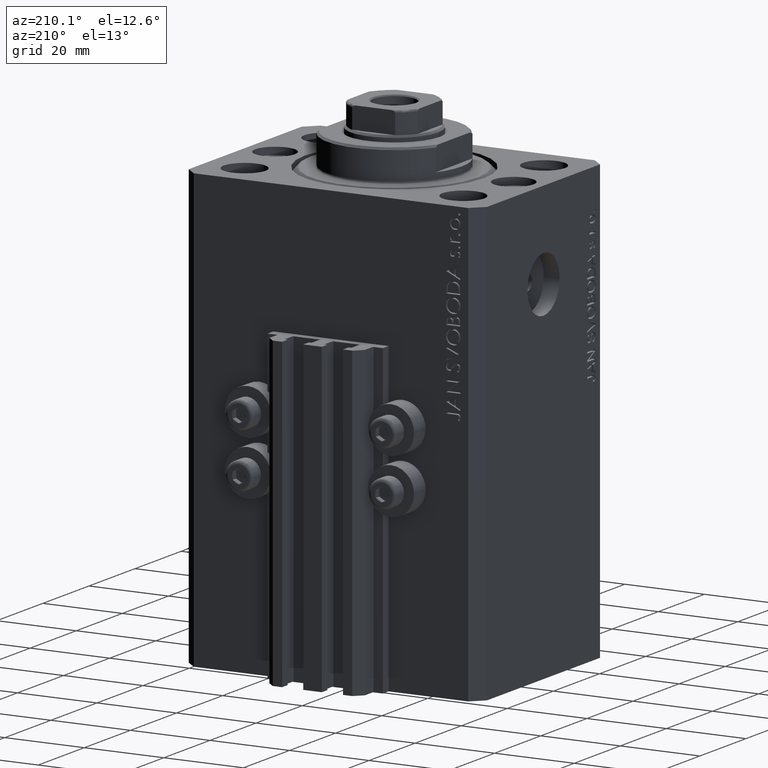
[diagram: clean part render]
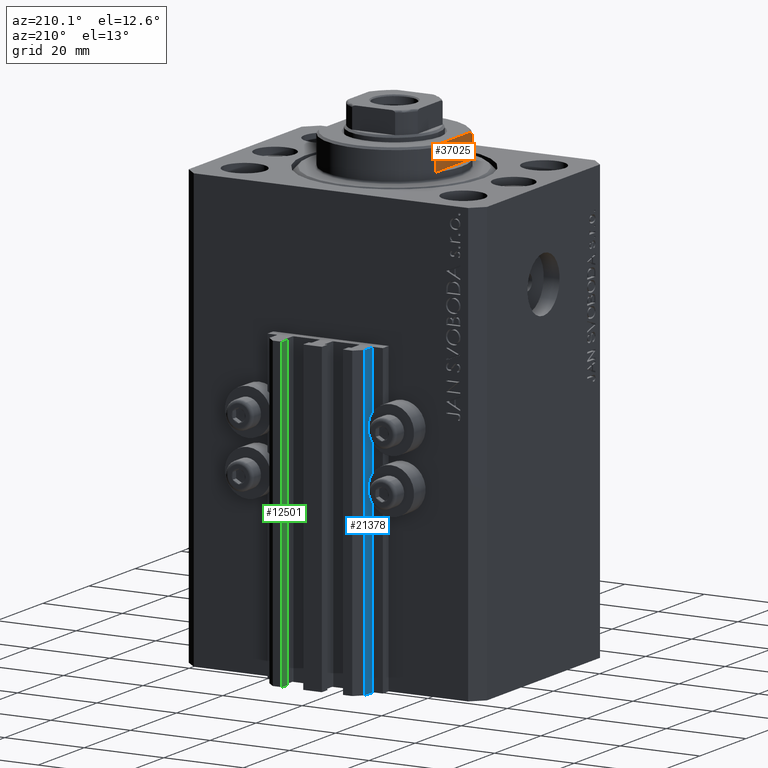
[diagram: same view with three faces highlighted in distinct colors, each labeled with its STEP entity id]
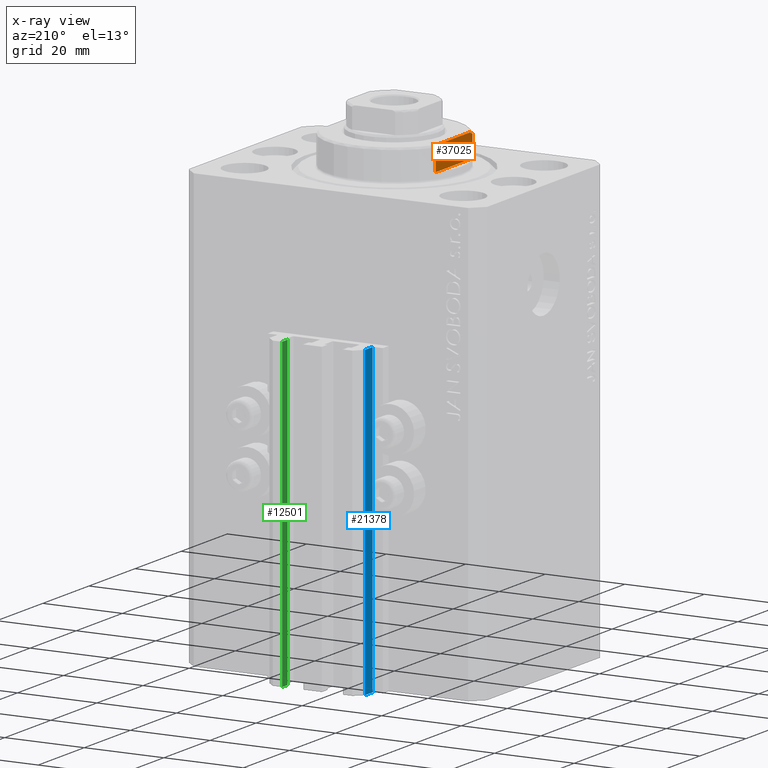
[diagram: x-ray of the same camera — body ghosted, the three highlighted faces saturated]
A machine part, auxiliary view with three faces highlighted in distinct colors.
The next image is the same camera in x-ray (body ghosted, the three faces saturated) — at least one of them is partly hidden behind the body in this view.
Their STEP definitions:

[orange] entity #37025 — the highlighted planar face has unit normal (-1, 0, 0).
#133 = CARTESIAN_POINT ( 'NONE',  ( 14.99999999999999645, 8.000000000000003553, -2.000000000000000000 ) ) ;
#498 = EDGE_CURVE ( 'NONE', #42211, #36135, #39501, .T. ) ;
#656 = B_SPLINE_CURVE_WITH_KNOTS ( 'NONE', 3,
 ( #33350, #36234, #46318, #40507 ),
 .UNSPECIFIED., .F., .F.,
 ( 4, 4 ),
 ( 0.04875332532859062012, 0.04998905627745663799 ),
 .UNSPECIFIED. ) ;
#2477 = VERTEX_POINT ( 'NONE', #27859 ) ;
#2503 = CARTESIAN_POINT ( 'NONE',  ( 15.00000000000000000, 8.000000000000001776, -7.500000000000013323 ) ) ;
#2618 = ORIENTED_EDGE ( 'NONE', *, *, #10097, .F. ) ;
#3732 = CARTESIAN_POINT ( 'NONE',  ( 15.00000000000000000, -8.000000000000001776, -8.000000000000000000 ) ) ;
#3822 = VERTEX_POINT ( 'NONE', #15038 ) ;
#4680 = LINE ( 'NONE', #12049, #43597 ) ;
#6784 = CARTESIAN_POINT ( 'NONE',  ( 15.00000000000000000, -42.42640687119285303, -2.000000000000000000 ) ) ;
#6908 = FACE_OUTER_BOUND ( 'NONE', #41215, .T. ) ;
#7374 = DIRECTION ( 'NONE',  ( 1.000000000000000000, 0.000000000000000000, -0.000000000000000000 ) ) ;
#8009 = ORIENTED_EDGE ( 'NONE', *, *, #22080, .F. ) ;
#8709 = ORIENTED_EDGE ( 'NONE', *, *, #36437, .F. ) ;
#8727 = EDGE_CURVE ( 'NONE', #36135, #3822, #21647, .T. ) ;
#10097 = EDGE_CURVE ( 'NONE', #14275, #2477, #23464, .T. ) ;
#12049 = CARTESIAN_POINT ( 'NONE',  ( 15.00000000000000000, 8.000000000000001776, -8.000000000000000000 ) ) ;
#13886 = VECTOR ( 'NONE', #18294, 1000.000000000000000 ) ;
#14098 = EDGE_CURVE ( 'NONE', #39564, #42211, #4680, .T. ) ;
#14275 = VERTEX_POINT ( 'NONE', #45274 ) ;
#15038 = CARTESIAN_POINT ( 'NONE',  ( 15.00000000000000000, -8.000000000000001776, -7.500000000000013323 ) ) ;
#15246 = DIRECTION ( 'NONE',  ( -0.000000000000000000, 0.000000000000000000, -1.000000000000000000 ) ) ;
#15823 = CARTESIAN_POINT ( 'NONE',  ( 15.00000000000000000, -42.42640687119285303, -8.000000000000000000 ) ) ;
#17076 = CARTESIAN_POINT ( 'NONE',  ( 15.00000000000000000, 7.628315461082486593, -7.674910371255312391 ) ) ;
#18294 = DIRECTION ( 'NONE',  ( 0.000000000000000000, 0.000000000000000000, -1.000000000000000000 ) ) ;
#21358 = DIRECTION ( 'NONE',  ( 0.000000000000000000, -1.000000000000000000, -0.000000000000000000 ) ) ;
#21647 = LINE ( 'NONE', #3732, #13886 ) ;
#22080 = EDGE_CURVE ( 'NONE', #2477, #3822, #656, .T. ) ;
#23464 = LINE ( 'NONE', #15823, #36568 ) ;
#23881 = CARTESIAN_POINT ( 'NONE',  ( 14.99999999999999645, -8.000000000000003553, -2.000000000000000000 ) ) ;
#25313 = PLANE ( 'NONE',  #27662 ) ;
#25778 = CARTESIAN_POINT ( 'NONE',  ( 15.00000000000000000, -42.42640687119285303, -2.000000000000000000 ) ) ;
#27662 = AXIS2_PLACEMENT_3D ( 'NONE', #25778, #7374, #15246 ) ;
#27859 = CARTESIAN_POINT ( 'NONE',  ( 14.99999999999999645, -6.873863542433781504, -8.000000000000000000 ) ) ;
#28903 = ORIENTED_EDGE ( 'NONE', *, *, #8727, .T. ) ;
#30167 = CARTESIAN_POINT ( 'NONE',  ( 15.00000000000000000, 8.000000000000001776, -7.500000000000013323 ) ) ;
#33350 = CARTESIAN_POINT ( 'NONE',  ( 14.99999999999999645, -6.873863542433781504, -8.000000000000000000 ) ) ;
#33923 = VECTOR ( 'NONE', #21358, 1000.000000000000000 ) ;
#35655 = ORIENTED_EDGE ( 'NONE', *, *, #14098, .T. ) ;
#36135 = VERTEX_POINT ( 'NONE', #23881 ) ;
#36234 = CARTESIAN_POINT ( 'NONE',  ( 15.00000000000000000, -7.254193676168139149, -7.841555306644512058 ) ) ;
#36437 = EDGE_CURVE ( 'NONE', #39564, #14275, #47032, .T. ) ;
#36568 = VECTOR ( 'NONE', #45436, 1000.000000000000000 ) ;
#37025 = ADVANCED_FACE ( 'NONE', ( #6908 ), #25313, .T. ) ;
#38806 = CARTESIAN_POINT ( 'NONE',  ( 14.99999999999999645, 6.873863542433781504, -8.000000000000000000 ) ) ;
#39501 = LINE ( 'NONE', #6784, #33923 ) ;
#39505 = CARTESIAN_POINT ( 'NONE',  ( 15.00000000000000000, 7.253126193285940104, -7.842000017654667587 ) ) ;
#39564 = VERTEX_POINT ( 'NONE', #30167 ) ;
#40507 = CARTESIAN_POINT ( 'NONE',  ( 15.00000000000000000, -8.000000000000001776, -7.500000000000013323 ) ) ;
#41212 = DIRECTION ( 'NONE',  ( -0.000000000000000000, -0.000000000000000000, 1.000000000000000000 ) ) ;
#41215 = EDGE_LOOP ( 'NONE', ( #35655, #47113, #28903, #8009, #2618, #8709 ) ) ;
#42211 = VERTEX_POINT ( 'NONE', #133 ) ;
#43597 = VECTOR ( 'NONE', #41212, 1000.000000000000000 ) ;
#45274 = CARTESIAN_POINT ( 'NONE',  ( 14.99999999999999645, 6.873863542433781504, -8.000000000000000000 ) ) ;
#45436 = DIRECTION ( 'NONE',  ( 0.000000000000000000, -1.000000000000000000, -0.000000000000000000 ) ) ;
#46318 = CARTESIAN_POINT ( 'NONE',  ( 15.00000000000000000, -7.629305121525818301, -7.674444648693746984 ) ) ;
#47032 = B_SPLINE_CURVE_WITH_KNOTS ( 'NONE', 3,
 ( #2503, #17076, #39505, #38806 ),
 .UNSPECIFIED., .F., .F.,
 ( 4, 4 ),
 ( 0.03336039268697044147, 0.03459498301323848946 ),
 .UNSPECIFIED. ) ;
#47113 = ORIENTED_EDGE ( 'NONE', *, *, #498, .T. ) ;

[blue] entity #21378 — the highlighted planar face has unit normal (-1, 0, 0).
#284 = EDGE_CURVE ( 'NONE', #43909, #7587, #39095, .T. ) ;
#563 = DIRECTION ( 'NONE',  ( 0.000000000000000000, 0.000000000000000000, 1.000000000000000000 ) ) ;
#2148 = AXIS2_PLACEMENT_3D ( 'NONE', #4906, #12275, #8703 ) ;
#2922 = ORIENTED_EDGE ( 'NONE', *, *, #7444, .F. ) ;
#4162 = LINE ( 'NONE', #29698, #22778 ) ;
#4906 = CARTESIAN_POINT ( 'NONE',  ( -12.00000000000000000, 33.49999999999998579, -110.0000000000000000 ) ) ;
#6453 = VECTOR ( 'NONE', #13529, 1000.000000000000000 ) ;
#7003 = VECTOR ( 'NONE', #33495, 1000.000000000000000 ) ;
#7444 = EDGE_CURVE ( 'NONE', #11497, #28600, #8391, .T. ) ;
#7587 = VERTEX_POINT ( 'NONE', #8513 ) ;
#8391 = LINE ( 'NONE', #26567, #7003 ) ;
#8469 = FACE_OUTER_BOUND ( 'NONE', #43071, .T. ) ;
#8513 = CARTESIAN_POINT ( 'NONE',  ( -12.00000000000000000, 30.19999999999999218, -110.0000000000000000 ) ) ;
#8703 = DIRECTION ( 'NONE',  ( 0.000000000000000000, 0.000000000000000000, 1.000000000000000000 ) ) ;
#9758 = ORIENTED_EDGE ( 'NONE', *, *, #24030, .T. ) ;
#11497 = VERTEX_POINT ( 'NONE', #18277 ) ;
#12104 = ORIENTED_EDGE ( 'NONE', *, *, #284, .T. ) ;
#12275 = DIRECTION ( 'NONE',  ( -1.000000000000000000, 0.000000000000000000, 0.000000000000000000 ) ) ;
#13529 = DIRECTION ( 'NONE',  ( 0.000000000000000000, -1.000000000000000000, 0.000000000000000000 ) ) ;
#14426 = VECTOR ( 'NONE', #31584, 1000.000000000000000 ) ;
#18277 = CARTESIAN_POINT ( 'NONE',  ( -12.00000000000000000, 33.49999999999998579, -33.00000000000000000 ) ) ;
#21378 = ADVANCED_FACE ( 'NONE', ( #8469 ), #23054, .T. ) ;
#22778 = VECTOR ( 'NONE', #563, 1000.000000000000000 ) ;
#23054 = PLANE ( 'NONE',  #2148 ) ;
#24030 = EDGE_CURVE ( 'NONE', #7587, #28600, #41604, .T. ) ;
#26567 = CARTESIAN_POINT ( 'NONE',  ( -12.00000000000000000, 33.49999999999998579, -33.00000000000000000 ) ) ;
#27061 = EDGE_CURVE ( 'NONE', #43909, #11497, #4162, .T. ) ;
#28600 = VERTEX_POINT ( 'NONE', #37937 ) ;
#29698 = CARTESIAN_POINT ( 'NONE',  ( -12.00000000000000000, 33.49999999999998579, -110.0000000000000000 ) ) ;
#31584 = DIRECTION ( 'NONE',  ( 0.000000000000000000, 0.000000000000000000, 1.000000000000000000 ) ) ;
#33495 = DIRECTION ( 'NONE',  ( 0.000000000000000000, -1.000000000000000000, 0.000000000000000000 ) ) ;
#35154 = CARTESIAN_POINT ( 'NONE',  ( -12.00000000000000000, 30.19999999999999218, -110.0000000000000000 ) ) ;
#37459 = CARTESIAN_POINT ( 'NONE',  ( -12.00000000000000000, 33.49999999999998579, -110.0000000000000000 ) ) ;
#37937 = CARTESIAN_POINT ( 'NONE',  ( -12.00000000000000000, 30.19999999999999218, -33.00000000000000000 ) ) ;
#38217 = ORIENTED_EDGE ( 'NONE', *, *, #27061, .F. ) ;
#39095 = LINE ( 'NONE', #39559, #6453 ) ;
#39559 = CARTESIAN_POINT ( 'NONE',  ( -12.00000000000000000, 33.49999999999998579, -110.0000000000000000 ) ) ;
#41604 = LINE ( 'NONE', #35154, #14426 ) ;
#43071 = EDGE_LOOP ( 'NONE', ( #2922, #38217, #12104, #9758 ) ) ;
#43909 = VERTEX_POINT ( 'NONE', #37459 ) ;

[green] entity #12501 — the highlighted planar face has unit normal (-1, 0, 0).
#570 = VERTEX_POINT ( 'NONE', #10828 ) ;
#3235 = ORIENTED_EDGE ( 'NONE', *, *, #3384, .T. ) ;
#3384 = EDGE_CURVE ( 'NONE', #26063, #570, #4887, .T. ) ;
#3957 = LINE ( 'NONE', #29033, #30091 ) ;
#3994 = ORIENTED_EDGE ( 'NONE', *, *, #30205, .T. ) ;
#4887 = LINE ( 'NONE', #34020, #24805 ) ;
#7987 = FACE_OUTER_BOUND ( 'NONE', #32119, .T. ) ;
#10828 = CARTESIAN_POINT ( 'NONE',  ( 7.649999999999998579, 33.10000000000001563, -110.0000000000000000 ) ) ;
#10871 = PLANE ( 'NONE',  #46550 ) ;
#10966 = CARTESIAN_POINT ( 'NONE',  ( 7.649999999999998579, 35.50000000000001421, -110.0000000000000000 ) ) ;
#12501 = ADVANCED_FACE ( 'NONE', ( #7987 ), #10871, .T. ) ;
#13249 = CARTESIAN_POINT ( 'NONE',  ( 7.649999999999998579, 33.10000000000001563, -33.00000000000000000 ) ) ;
#13307 = VERTEX_POINT ( 'NONE', #13249 ) ;
#15853 = DIRECTION ( 'NONE',  ( 0.000000000000000000, -1.000000000000000000, 0.000000000000000000 ) ) ;
#15863 = EDGE_CURVE ( 'NONE', #26063, #42220, #29374, .T. ) ;
#18521 = DIRECTION ( 'NONE',  ( 0.000000000000000000, -1.000000000000000000, 0.000000000000000000 ) ) ;
#19221 = CARTESIAN_POINT ( 'NONE',  ( 7.649999999999998579, 35.50000000000001421, -33.00000000000000000 ) ) ;
#19960 = VECTOR ( 'NONE', #22441, 1000.000000000000000 ) ;
#21684 = LINE ( 'NONE', #28150, #38868 ) ;
#22441 = DIRECTION ( 'NONE',  ( 0.000000000000000000, 0.000000000000000000, 1.000000000000000000 ) ) ;
#24805 = VECTOR ( 'NONE', #15853, 1000.000000000000000 ) ;
#26063 = VERTEX_POINT ( 'NONE', #47102 ) ;
#28150 = CARTESIAN_POINT ( 'NONE',  ( 7.649999999999998579, 33.10000000000001563, -110.0000000000000000 ) ) ;
#29033 = CARTESIAN_POINT ( 'NONE',  ( 7.649999999999998579, 35.50000000000001421, -33.00000000000000000 ) ) ;
#29374 = LINE ( 'NONE', #10966, #19960 ) ;
#29498 = CARTESIAN_POINT ( 'NONE',  ( 7.649999999999998579, 35.50000000000001421, -110.0000000000000000 ) ) ;
#29734 = DIRECTION ( 'NONE',  ( 0.000000000000000000, 0.000000000000000000, 1.000000000000000000 ) ) ;
#30091 = VECTOR ( 'NONE', #18521, 1000.000000000000000 ) ;
#30205 = EDGE_CURVE ( 'NONE', #570, #13307, #21684, .T. ) ;
#32119 = EDGE_LOOP ( 'NONE', ( #33001, #41376, #3235, #3994 ) ) ;
#33001 = ORIENTED_EDGE ( 'NONE', *, *, #46599, .F. ) ;
#34020 = CARTESIAN_POINT ( 'NONE',  ( 7.649999999999998579, 35.50000000000001421, -110.0000000000000000 ) ) ;
#38868 = VECTOR ( 'NONE', #46766, 1000.000000000000000 ) ;
#41376 = ORIENTED_EDGE ( 'NONE', *, *, #15863, .F. ) ;
#42220 = VERTEX_POINT ( 'NONE', #19221 ) ;
#44529 = DIRECTION ( 'NONE',  ( -1.000000000000000000, 0.000000000000000000, 0.000000000000000000 ) ) ;
#46550 = AXIS2_PLACEMENT_3D ( 'NONE', #29498, #44529, #29734 ) ;
#46599 = EDGE_CURVE ( 'NONE', #42220, #13307, #3957, .T. ) ;
#46766 = DIRECTION ( 'NONE',  ( 0.000000000000000000, 0.000000000000000000, 1.000000000000000000 ) ) ;
#47102 = CARTESIAN_POINT ( 'NONE',  ( 7.649999999999998579, 35.50000000000001421, -110.0000000000000000 ) ) ;